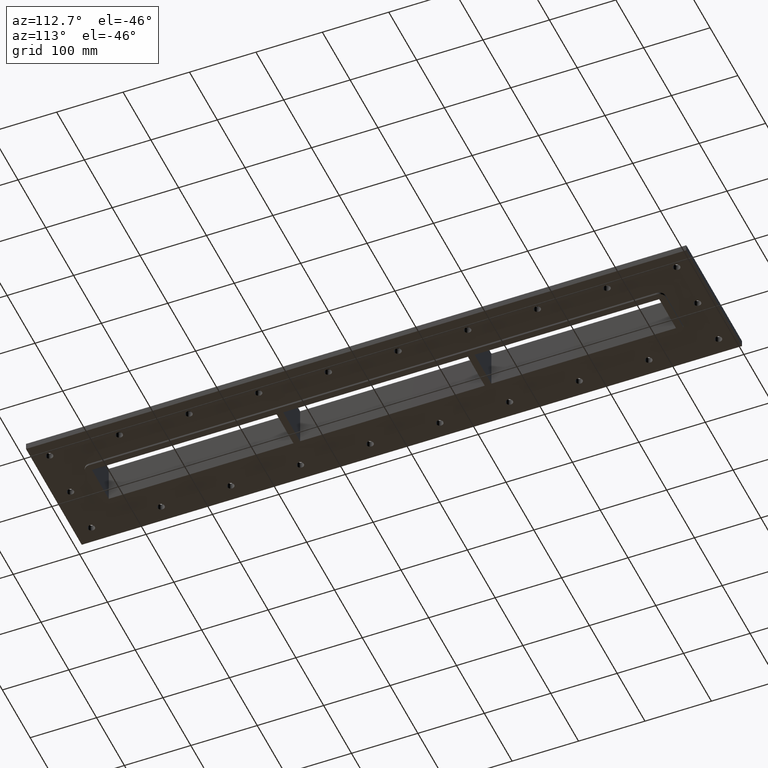
[diagram: clean part render]
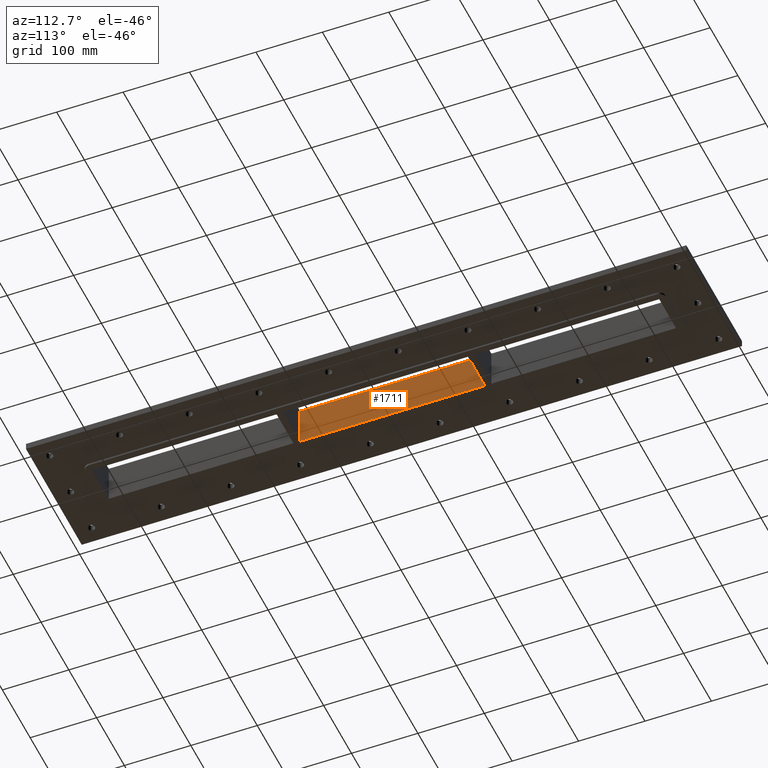
[diagram: same view with one face highlighted and labeled with its STEP entity id]
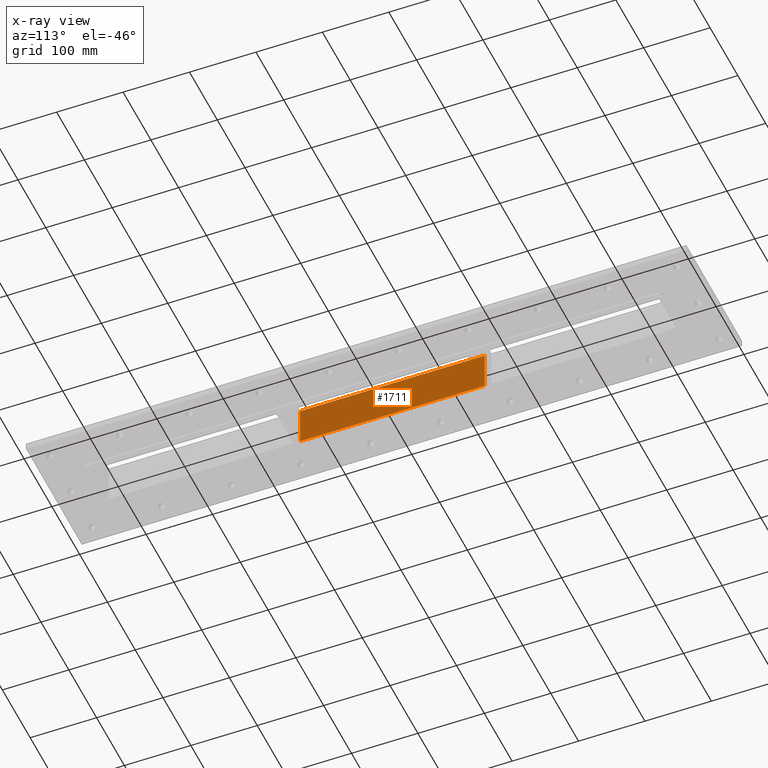
[diagram: x-ray of the same camera — body ghosted, the highlighted face saturated]
A machine part, auxiliary view. The second image highlights one B-rep face of the part: STEP entity #1711.
The next image is the same camera in x-ray: the body ghosted, the highlighted face saturated — about 0% of this face is hidden behind the body in this view.
In plain terms, the highlighted planar face has unit normal (-1, 0, 0).
Its self-contained STEP definition (entity closure, byte-faithful):
#1408=CARTESIAN_POINT('',(-30.25,138.99999999999991,-30.0));
#1409=VERTEX_POINT('',#1408);
#1410=CARTESIAN_POINT('',(-30.249999999999915,-138.99999999999989,-30.0));
#1411=VERTEX_POINT('',#1410);
#1412=CARTESIAN_POINT('',(-30.249999999999996,138.99999999999991,-30.0));
#1413=DIRECTION('',(0.0,-1.0,0.0));
#1414=VECTOR('',#1413,277.99999999999977);
#1415=LINE('',#1412,#1414);
#1416=EDGE_CURVE('',#1409,#1411,#1415,.T.);
#1681=CARTESIAN_POINT('',(-30.249999999999915,-138.99999999999989,30.0));
#1682=DIRECTION('',(-1.0,0.0,0.0));
#1683=DIRECTION('',(0.0,1.0,0.0));
#1684=AXIS2_PLACEMENT_3D('',#1681,#1682,#1683);
#1685=PLANE('',#1684);
#1686=ORIENTED_EDGE('',*,*,#1416,.F.);
#1687=CARTESIAN_POINT('',(-30.25,138.99999999999991,30.0));
#1688=VERTEX_POINT('',#1687);
#1689=CARTESIAN_POINT('',(-30.25,138.99999999999991,30.0));
#1690=DIRECTION('',(0.0,0.0,-1.0));
#1691=VECTOR('',#1690,60.0);
#1692=LINE('',#1689,#1691);
#1693=EDGE_CURVE('',#1688,#1409,#1692,.T.);
#1694=ORIENTED_EDGE('',*,*,#1693,.F.);
#1695=CARTESIAN_POINT('',(-30.249999999999915,-138.99999999999989,30.0));
#1696=VERTEX_POINT('',#1695);
#1697=CARTESIAN_POINT('',(-30.249999999999911,-138.99999999999989,30.0));
#1698=DIRECTION('',(0.0,1.0,0.0));
#1699=VECTOR('',#1698,277.99999999999977);
#1700=LINE('',#1697,#1699);
#1701=EDGE_CURVE('',#1696,#1688,#1700,.T.);
#1702=ORIENTED_EDGE('',*,*,#1701,.F.);
#1703=CARTESIAN_POINT('',(-30.249999999999915,-138.99999999999989,30.0));
#1704=DIRECTION('',(0.0,0.0,-1.0));
#1705=VECTOR('',#1704,60.0);
#1706=LINE('',#1703,#1705);
#1707=EDGE_CURVE('',#1696,#1411,#1706,.T.);
#1708=ORIENTED_EDGE('',*,*,#1707,.T.);
#1709=EDGE_LOOP('',(#1686,#1694,#1702,#1708));
#1710=FACE_OUTER_BOUND('',#1709,.T.);
#1711=ADVANCED_FACE('',(#1710),#1685,.F.);